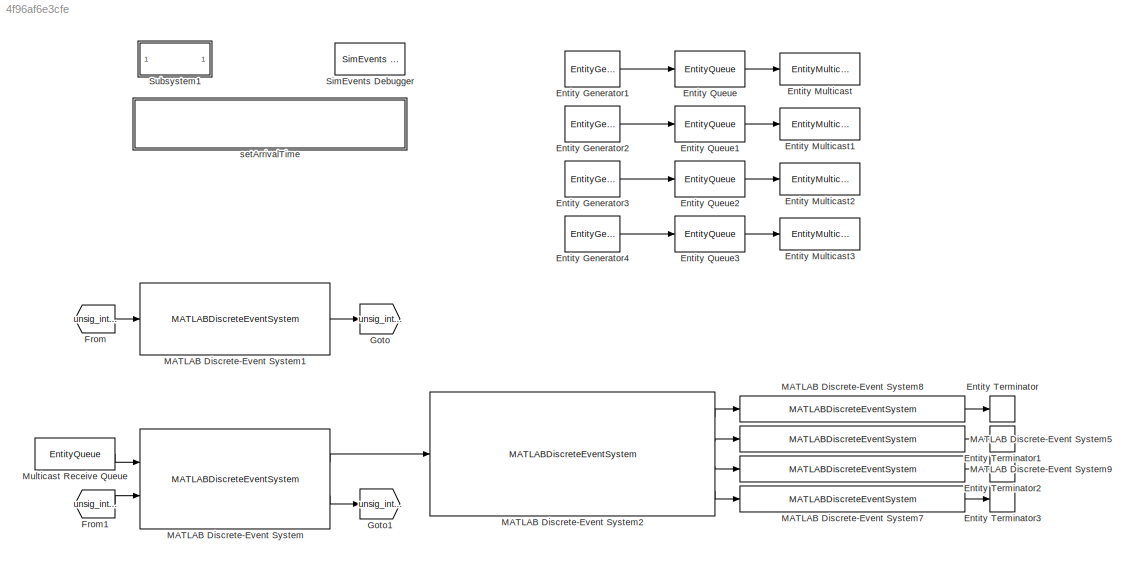
MODEL slx_4f96af6e3cfe
KIND model
CONFIG AbsTol = auto
CONFIG EnableMultiTasking = off
CONFIG FixedStep = 1
CONFIG MaxStep = auto
CONFIG MinStep = auto
CONFIG RelTol = 1e-3
CONFIG SampleTimeConstraint = Unconstrained
CONFIG Solver = VariableStepAuto
CONFIG SolverName = VariableStepAuto
CONFIG StartTime = 0.0
CONFIG StopTime = 100
BLOCK [EntityGenerator] Entity Generator1
  EntityType = Bus object
  EntityTypeName = CAV
  IntergenerationTimeAction = %mean = 3;\n%dt = 3 - mean*log(rand());\ndt = 1000;
  OutputPortMap = o3
  OutputPortMessageModes = m
  Ports = [0, 1]
  TimeSource = MATLAB action
BLOCK [EntityGenerator] Entity Generator2
  EntityType = Bus object
  EntityTypeName = CAV
  IntergenerationTimeAction = %mean = 3;\n%dt = 3 - mean*log(rand());\ndt = 1000;
  OutputPortMap = o3
  OutputPortMessageModes = m
  Ports = [0, 1]
  TimeSource = MATLAB action
BLOCK [EntityGenerator] Entity Generator3
  EntityType = Bus object
  EntityTypeName = CAV
  IntergenerationTimeAction = %mean = 3;\n%dt = 3 - mean*log(rand());\ndt = 1000;
  OutputPortMap = o3
  OutputPortMessageModes = m
  Ports = [0, 1]
  TimeSource = MATLAB action
BLOCK [EntityGenerator] Entity Generator4
  EntityType = Bus object
  EntityTypeName = CAV
  IntergenerationTimeAction = %mean = 3;\n%dt = 3 - mean*log(rand());\ndt = 1000;
  OutputPortMap = o3
  OutputPortMessageModes = m
  Ports = [0, 1]
  TimeSource = MATLAB action
BLOCK [EntityMulticast] Entity Multicast
  InputPortMessageModes = m
BLOCK [EntityMulticast] Entity Multicast1
  InputPortMessageModes = m
BLOCK [EntityMulticast] Entity Multicast2
  InputPortMessageModes = m
BLOCK [EntityMulticast] Entity Multicast3
  InputPortMessageModes = m
BLOCK [EntityQueue] Entity Queue
  Capacity = Inf
  EntryAction = entity.Speed = 15.64;  % average velocity 15.64\n%entity.Speed = 9 + 2 * rand();\nentity.Lane = 1;\n[entity.ArrivalTime,...\n    entity.ID] = unsig_int_1_setArrivalTime();\nentity.FinalSpeed = 10;\nentity.Position = 445;\nentity.Intersection = 1;
  InputPortMap = u0
  InputPortMessageModes = m
  OutputPortMap = o5
  OutputPortMessageModes = m
  Ports = [1, 1]
BLOCK [EntityQueue] Entity Queue1
  Capacity = Inf
  EntryAction = entity.Speed = 15.64;\n%entity.Speed = 9 + 2 * rand();\nentity.Lane = 2;\n[entity.ArrivalTime,...\n    entity.ID] = unsig_int_1_setArrivalTime();\nentity.FinalSpeed = 10;\nentity.Position = 445;\nentity.Intersection = 1;
  InputPortMap = u0
  InputPortMessageModes = m
  OutputPortMap = o5
  OutputPortMessageModes = m
  Ports = [1, 1]
BLOCK [EntityQueue] Entity Queue2
  Capacity = Inf
  EntryAction = entity.Speed = 15.64;\n%entity.Speed = 9 + 2 * rand();\nentity.Lane = 3;\n[entity.ArrivalTime,...\n    entity.ID] = unsig_int_1_setArrivalTime();\nentity.FinalSpeed = 10;\nentity.Position = 445;\nentity.Intersection = 1;
  InputPortMap = u0
  InputPortMessageModes = m
  OutputPortMap = o5
  OutputPortMessageModes = m
  Ports = [1, 1]
BLOCK [EntityQueue] Entity Queue3
  Capacity = Inf
  EntryAction = entity.Speed = 15.64;\n%entity.Speed = 9 + 2 * rand();\nentity.Lane = 4;\n[entity.ArrivalTime,...\n    entity.ID] = unsig_int_1_setArrivalTime();\nentity.FinalSpeed = 10;\nentity.Position = 445;\nentity.Intersection = 1;
  InputPortMap = u0
  InputPortMessageModes = m
  OutputPortMap = o5
  OutputPortMessageModes = m
  Ports = [1, 1]
BLOCK [EntityTerminator] Entity Terminator
  InputPortMap = u0
  InputPortMessageModes = m
  Ports = [1]
BLOCK [EntityTerminator] Entity Terminator1
  InputPortMap = u0
  InputPortMessageModes = m
  Ports = [1]
BLOCK [EntityTerminator] Entity Terminator2
  InputPortMap = u0
  InputPortMessageModes = m
  Ports = [1]
BLOCK [EntityTerminator] Entity Terminator3
  InputPortMap = u0
  InputPortMessageModes = m
  Ports = [1]
BLOCK [From] From
  GotoTag = unsig_int_1_B
BLOCK [From] From1
  GotoTag = unsig_int_1_A
BLOCK [Goto] Goto
  GotoTag = unsig_int_1_A
BLOCK [Goto] Goto1
  GotoTag = unsig_int_1_B
BLOCK [MATLABDiscreteEventSystem] MATLAB Discrete-Event System
  InputPortMessageModes = m,m
  L = 500
  MILP_step = 4
  MaskDisplay = disp(['MILP' char(10) 'CONTROL ZONE']);\nport_label('input',1,'IN');\nport_label('input',2,'INFO');\nport_label('output',1,'OUT');\nport_label('output',2,'INFO');
  MaskType = MILP_unsig_int_1_Controller
  OutputPortMessageModes = m,m
  Ports = [2, 2]
  S = 30
  SimulateUsing = Interpreted execution
  System = MILP_unsig_int_1_Controller
  a_acc_max = 3
  a_dec_max = -4
  arrayLane = zeros( 1000, 1 )
  arrayMinAccessTime = zeros( 1000, 1 )
  arraySolvedMILP = zeros( 1000, 1 )
  capacity = 100
  cavNum = 0
  d_access = 40
  delay = 0
  index = 0
  profiles = repmat( struct( 'speed', @(t) 1, 'position', @(t) 1 ), 1000, 1 )
  ready_to_update = 0
  run_MILP = 0
  simulation_step = 0.01
  storageVisited = zeros( 5, 1 )
  v_ave = 15.64
  v_max = 19
BLOCK [MATLABDiscreteEventSystem] MATLAB Discrete-Event System1
  InputPortMessageModes = m
  MaskDisplay = disp(['MILP ' char(10) ' COORDINATOR']);\nport_label('input',1,'IN');\nport_label('output',1,'OUT');
  MaskType = MILP_unsig_int_1_Coordinator
  OutputPortMessageModes = m
  Ports = [1, 1]
  SimulateUsing = Interpreted execution
  System = MILP_unsig_int_1_Coordinator
  capacity = 100
BLOCK [MATLABDiscreteEventSystem] MATLAB Discrete-Event System2
  INT_MAX = 2000
  InputPortMessageModes = m
  L = 400
  MaskDisplay = disp(['MILP' char(10) 'MERGING ZONE']);\nport_label('input',1,'CAV');\nport_label('output',1,'TO WEST');\nport_label('output',2,'TO SOUTH');\nport_label('output',3,'TO EAST');\nport_label('output',4,'TO NORTH');
  MaskType = MILP_unsig_int_1_MergingZoneCruiser
  OutputPortMessageModes = m,m,m,m
  Ports = [1, 4]
  S = 30
  SimulateUsing = Interpreted execution
  System = MILP_unsig_int_1_MergingZoneCruiser
  capacity = 200
  d_access = 40
  simulation_step = 0.01
  storageVisited = 0
BLOCK [MATLABDiscreteEventSystem] MATLAB Discrete-Event System5
  InputPortMessageModes = m
  L = 500
  MaskDisplay = disp('LEAVE THE INTERSECTION');\nport_label('input',1,'IN');\nport_label('output',1,'OUT');
  MaskType = MILP_unsig_int_1_RoadSegment_2
  OutputPortMessageModes = m
  Ports = [1, 1]
  S = 30
  SimulateUsing = Interpreted execution
  System = MILP_unsig_int_1_RoadSegment_2
  capacity = 100
  d_access = 40
  simulation_step = 0.01
BLOCK [MATLABDiscreteEventSystem] MATLAB Discrete-Event System7
  InputPortMessageModes = m
  L = 500
  MaskDisplay = disp('LEAVE THE INTERSECTION');\nport_label('input',1,'IN');\nport_label('output',1,'OUT');
  MaskType = MILP_unsig_int_1_RoadSegment_4
  OutputPortMessageModes = m
  Ports = [1, 1]
  S = 30
  SimulateUsing = Interpreted execution
  System = MILP_unsig_int_1_RoadSegment_4
  capacity = 100
  d_access = 40
  simulation_step = 0.01
BLOCK [MATLABDiscreteEventSystem] MATLAB Discrete-Event System8
  InputPortMessageModes = m
  L = 500
  MaskDisplay = disp('LEAVE THE INTERSECTION');\nport_label('input',1,'IN');\nport_label('output',1,'OUT');
  MaskType = MILP_unsig_int_1_RoadSegment_1
  OutputPortMessageModes = m
  Ports = [1, 1]
  S = 30
  SimulateUsing = Interpreted execution
  System = MILP_unsig_int_1_RoadSegment_1
  capacity = 100
  d_access = 40
  simulation_step = 0.01
BLOCK [MATLABDiscreteEventSystem] MATLAB Discrete-Event System9
  InputPortMessageModes = m
  L = 500
  MaskDisplay = disp('LEAVE THE INTERSECTION');\nport_label('input',1,'IN');\nport_label('output',1,'OUT');
  MaskType = MILP_unsig_int_1_RoadSegment_3
  OutputPortMessageModes = m
  Ports = [1, 1]
  S = 30
  SimulateUsing = Interpreted execution
  System = MILP_unsig_int_1_RoadSegment_3
  capacity = 100
  d_access = 40
  simulation_step = 0.01
BLOCK [EntityQueue] Multicast Receive Queue
  Capacity = 100
  EntityArrivalSource = Multicast
  OutputPortMap = o5
  OutputPortMessageModes = m
  Ports = [0, 1]
BLOCK [Reference] SimEvents Debugger  REF=sldelib/SimEvents Debugger
  Ports = []
  SourceBlock = sldelib/SimEvents Debugger
  SourceProductBaseCode = SE
  SourceProductName = SimEvents
  SourceType = SimEvents Debugger (Tech Preview)
BLOCK [SubSystem] Subsystem1
  OpenFcn = init_func
  Ports = []
  RequestExecContextInheritance = off
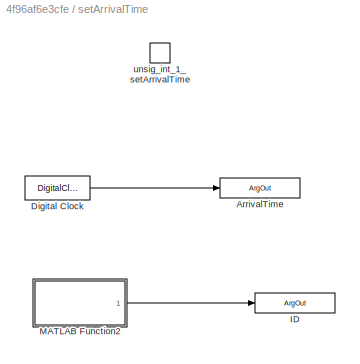
BLOCK [SubSystem] setArrivalTime
  Ports = [0, 0, 0, 1]
  RequestExecContextInheritance = off
  TreatAsAtomicUnit = on
BLOCK [ArgOut] setArrivalTime/ArrivalTime
  ArgumentName = ArrivalTime
  DisableCoverage = on
BLOCK [DigitalClock] setArrivalTime/Digital Clock
  SampleTime = -1
BLOCK [ArgOut] setArrivalTime/ID
  ArgumentName = ID
  DisableCoverage = on
  Port = 2
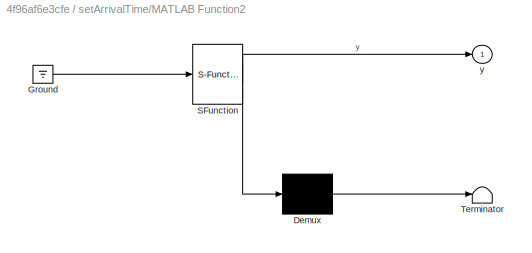
BLOCK [SubSystem] setArrivalTime/MATLAB Function2
  ErrorFcn = Stateflow.Translate.translate
  PermitHierarchicalResolution = ExplicitOnly
  Ports = [0, 1]
  RequestExecContextInheritance = off
  SFBlockType = MATLAB Function
  TreatAsAtomicUnit = on
BLOCK [Demux] setArrivalTime/MATLAB Function2/ Demux 
  Outputs = 1
  Ports = [1, 1]
BLOCK [Ground] setArrivalTime/MATLAB Function2/ Ground 
BLOCK [S-Function] setArrivalTime/MATLAB Function2/ SFunction 
  EnableBusSupport = on
  FunctionName = sf_sfun
  PortCounts = [1 2]
  Ports = [1, 2]
  SFcnIsStateOwnerBlock = off
  SFunctionDeploymentMode = off
  Tag = Stateflow S-Function trial_model 3
BLOCK [Terminator] setArrivalTime/MATLAB Function2/ Terminator 
BLOCK [Outport] setArrivalTime/MATLAB Function2/y
  IconDisplay = Port number
BLOCK [TriggerPort] setArrivalTime/unsig_int_1_setArrivalTime
  FunctionName = unsig_int_1_setArrivalTime
  FunctionVisibility = scoped
  IsSimulinkFunction = on
  Ports = []
  StatesWhenEnabling = held
  TriggerType = function-call
  VariantControl = Variant
LINE Entity Generator1:1 -> Entity Queue:1
LINE Entity Generator2:1 -> Entity Queue1:1
LINE Entity Generator3:1 -> Entity Queue2:1
LINE Entity Generator4:1 -> Entity Queue3:1
LINE Entity Queue1:1 -> Entity Multicast1:1
LINE Entity Queue2:1 -> Entity Multicast2:1
LINE Entity Queue3:1 -> Entity Multicast3:1
LINE Entity Queue:1 -> Entity Multicast:1
LINE From1:1 -> MATLAB Discrete-Event System:2
LINE From:1 -> MATLAB Discrete-Event System1:1
LINE MATLAB Discrete-Event System1:1 -> Goto:1
LINE MATLAB Discrete-Event System2:1 -> MATLAB Discrete-Event System8:1
LINE MATLAB Discrete-Event System2:2 -> MATLAB Discrete-Event System5:1
LINE MATLAB Discrete-Event System2:3 -> MATLAB Discrete-Event System9:1
LINE MATLAB Discrete-Event System2:4 -> MATLAB Discrete-Event System7:1
LINE MATLAB Discrete-Event System5:1 -> Entity Terminator1:1
LINE MATLAB Discrete-Event System7:1 -> Entity Terminator3:1
LINE MATLAB Discrete-Event System8:1 -> Entity Terminator:1
LINE MATLAB Discrete-Event System9:1 -> Entity Terminator2:1
LINE MATLAB Discrete-Event System:1 -> MATLAB Discrete-Event System2:1
LINE MATLAB Discrete-Event System:2 -> Goto1:1
LINE Multicast Receive Queue:1 -> MATLAB Discrete-Event System:1
LINE setArrivalTime/Digital Clock:1 -> setArrivalTime/ArrivalTime:1
LINE setArrivalTime/MATLAB Function2:1 -> setArrivalTime/ID:1
CHART setArrivalTime/MATLAB Function2 states=1 transitions=1
  STATE_LABEL 'eML_blk_kernel()'
  STATE_LABEL 'SCRIPT:\nfunction y = getID\nglobal unsig_int_1_FF\n\nunsig_int_1_FF = unsig_int_1_FF + 1;\ny = unsig_int_1_FF;'
